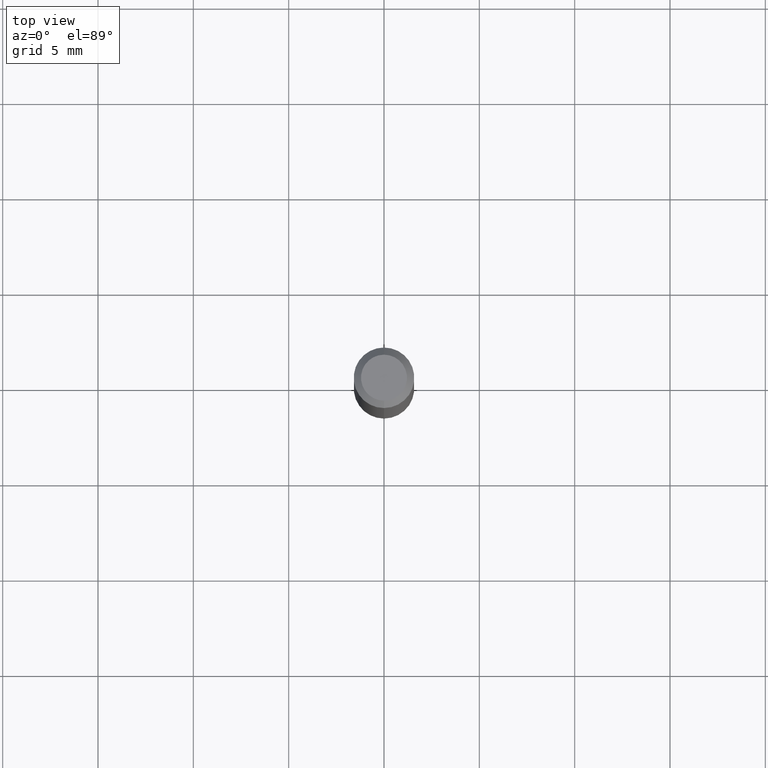
[diagram: clean part render]
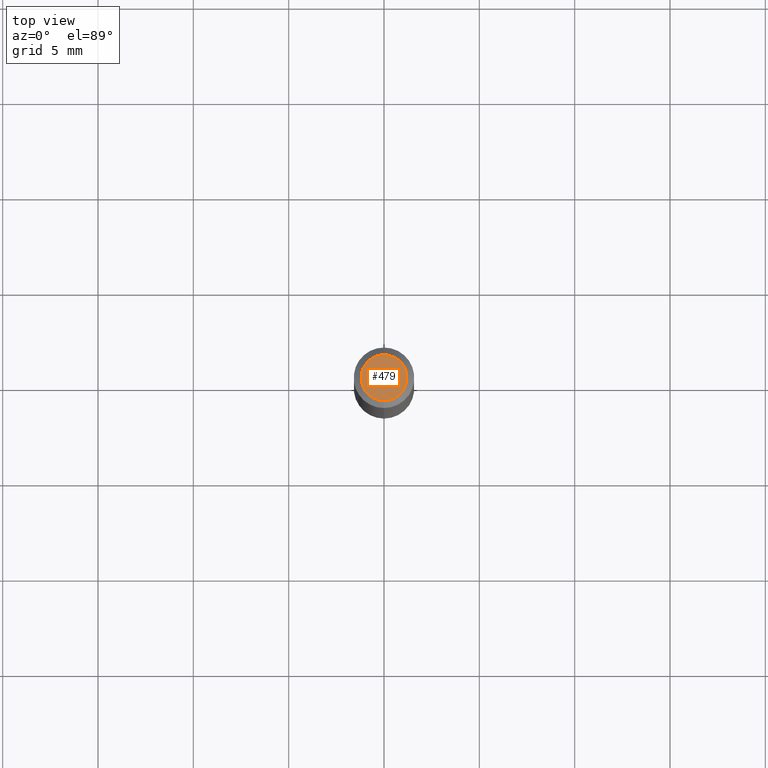
[diagram: same view with one face highlighted and labeled with its STEP entity id]
A machine part, top view. The second image highlights one B-rep face of the part: STEP entity #479.
In plain terms, the highlighted planar face has unit normal (0, -0, -1).
Its self-contained STEP definition (entity closure, byte-faithful):
#68 = DIRECTION ( 'NONE',  ( 6.982962677686265922E-15, 1.000000000000000000, -3.491477761697311641E-15 ) ) ;
#82 = CARTESIAN_POINT ( 'NONE',  ( -5.856621878284870506E-45, 8.361686768713868835E-31, 2.394884727734598175E-16 ) ) ;
#106 = EDGE_LOOP ( 'NONE', ( #400, #174 ) ) ;
#110 = FACE_OUTER_BOUND ( 'NONE', #106, .T. ) ;
#144 = CARTESIAN_POINT ( 'NONE',  ( -3.773273898774340269E-16, -0.04749999999999999362, 4.053336664540820652E-16 ) ) ;
#152 = AXIS2_PLACEMENT_3D ( 'NONE', #335, #289, #68 ) ;
#164 = EDGE_CURVE ( 'NONE', #405, #181, #340, .T. ) ;
#174 = ORIENTED_EDGE ( 'NONE', *, *, #164, .T. ) ;
#181 = VERTEX_POINT ( 'NONE', #423 ) ;
#195 = DIRECTION ( 'NONE',  ( -6.982962677686266711E-15, -1.000000000000000000, 3.491477761697310852E-15 ) ) ;
#209 = CIRCLE ( 'NONE', #490, 0.04749999999999999362 ) ;
#218 = CARTESIAN_POINT ( 'NONE',  ( -5.856621878284870506E-45, 8.361686768713868835E-31, 2.394884727734598175E-16 ) ) ;
#257 = PLANE ( 'NONE',  #152 ) ;
#277 = AXIS2_PLACEMENT_3D ( 'NONE', #82, #428, #195 ) ;
#289 = DIRECTION ( 'NONE',  ( 2.445471304092721258E-29, -3.491477761697311641E-15, -1.000000000000000000 ) ) ;
#304 = EDGE_CURVE ( 'NONE', #181, #405, #209, .T. ) ;
#335 = CARTESIAN_POINT ( 'NONE',  ( 3.316907271900976096E-16, 0.04749999999999999362, -4.610095729389238213E-17 ) ) ;
#340 = CIRCLE ( 'NONE', #277, 0.04749999999999999362 ) ;
#400 = ORIENTED_EDGE ( 'NONE', *, *, #304, .T. ) ;
#405 = VERTEX_POINT ( 'NONE', #144 ) ;
#406 = DIRECTION ( 'NONE',  ( -6.982962677686266711E-15, -1.000000000000000000, 3.491477761697310852E-15 ) ) ;
#423 = CARTESIAN_POINT ( 'NONE',  ( 3.840629472727447874E-16, 0.04749999999999999362, 7.364327909283752044E-17 ) ) ;
#428 = DIRECTION ( 'NONE',  ( -2.445471304092721818E-29, 3.491477761697311641E-15, 1.000000000000000000 ) ) ;
#443 = DIRECTION ( 'NONE',  ( -2.445471304092721818E-29, 3.491477761697311641E-15, 1.000000000000000000 ) ) ;
#479 = ADVANCED_FACE ( 'NONE', ( #110 ), #257, .F. ) ;
#490 = AXIS2_PLACEMENT_3D ( 'NONE', #218, #443, #406 ) ;